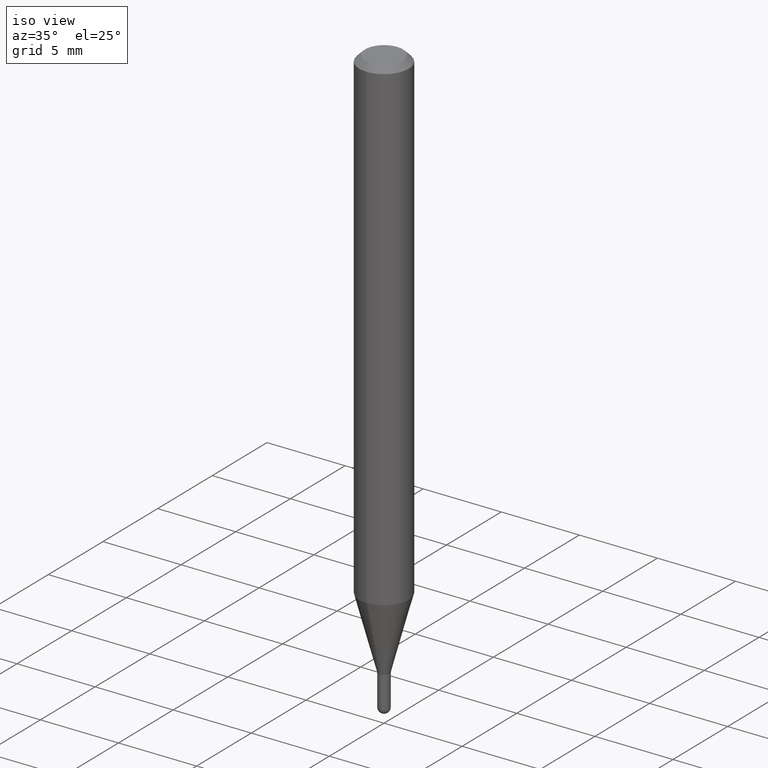
[diagram: clean part render]
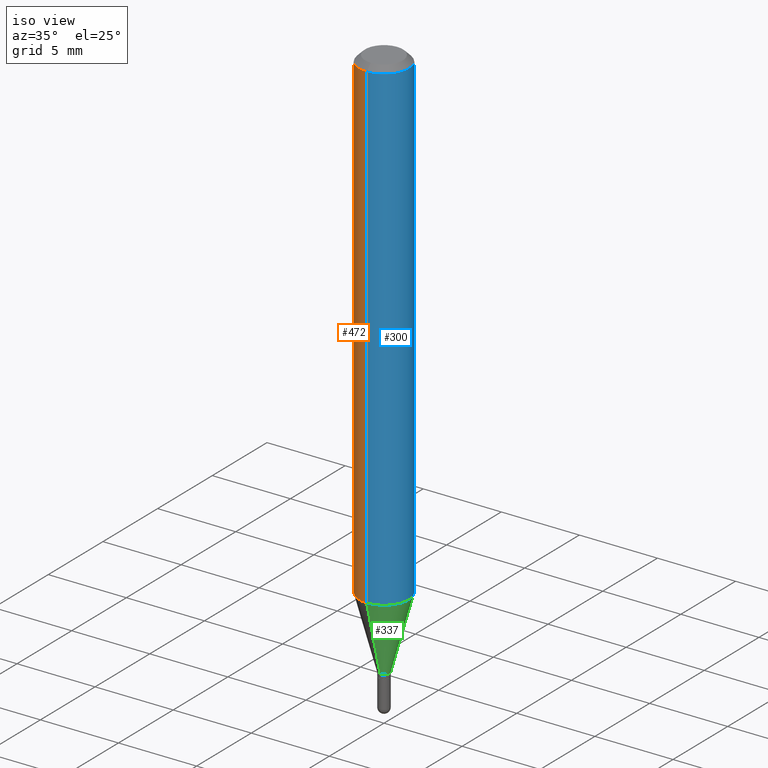
[diagram: same view with three faces highlighted in distinct colors, each labeled with its STEP entity id]
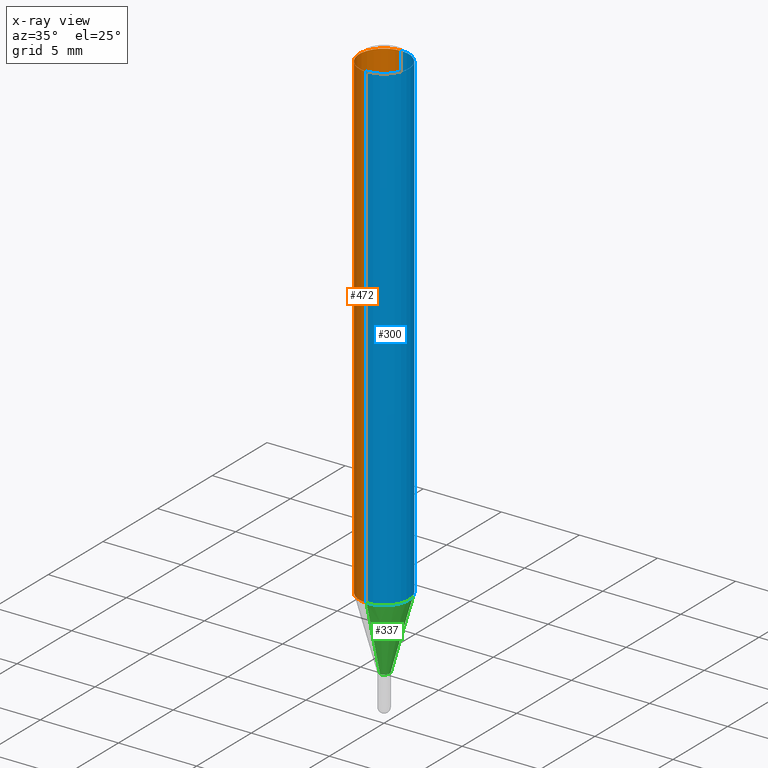
[diagram: x-ray of the same camera — body ghosted, the three highlighted faces saturated]
A machine part, iso view with three faces highlighted in distinct colors.
The next image is the same camera in x-ray (body ghosted, the three faces saturated) — at least one of them is partly hidden behind the body in this view.
Their STEP definitions:

[orange] entity #472 — the highlighted cylindrical surface (edge-blend (fillet) strip) has radius 1.5875 mm, axis along (-0, 0, 1).
#9 = CYLINDRICAL_SURFACE ( 'NONE', #173, 0.06250000000000000000 ) ;
#19 = CARTESIAN_POINT ( 'NONE',  ( 4.440892098500625669E-16, 0.06250000000000000000, -2.182188705240386283E-16 ) ) ;
#40 = EDGE_CURVE ( 'NONE', #512, #209, #125, .T. ) ;
#54 = DIRECTION ( 'NONE',  ( -2.445454428585171243E-29, 3.491501928384618052E-15, 1.000000000000000000 ) ) ;
#70 = DIRECTION ( 'NONE',  ( -6.982962677686265922E-15, -1.000000000000000000, 3.491501928384618052E-15 ) ) ;
#90 = VECTOR ( 'NONE', #339, 39.37007874015748143 ) ;
#103 = AXIS2_PLACEMENT_3D ( 'NONE', #338, #503, #297 ) ;
#107 = LINE ( 'NONE', #490, #322 ) ;
#125 = CIRCLE ( 'NONE', #103, 0.06250000000000000000 ) ;
#149 = VERTEX_POINT ( 'NONE', #370 ) ;
#155 = EDGE_CURVE ( 'NONE', #149, #335, #267, .T. ) ;
#156 = EDGE_LOOP ( 'NONE', ( #332, #284, #505, #311 ) ) ;
#173 = AXIS2_PLACEMENT_3D ( 'NONE', #502, #296, #70 ) ;
#177 = DIRECTION ( 'NONE',  ( -6.982962677686265922E-15, -1.000000000000000000, 4.370956789862821150E-15 ) ) ;
#184 = CARTESIAN_POINT ( 'NONE',  ( 2.995670758099655086E-29, -4.277074275623154281E-15, -1.224995535832910099 ) ) ;
#189 = CARTESIAN_POINT ( 'NONE',  ( 4.440892098500927901E-16, 0.06249999999999995837, -0.01499999999999997863 ) ) ;
#209 = VERTEX_POINT ( 'NONE', #290 ) ;
#222 = LINE ( 'NONE', #19, #90 ) ;
#267 = CIRCLE ( 'NONE', #437, 0.06250000000000000000 ) ;
#284 = ORIENTED_EDGE ( 'NONE', *, *, #155, .T. ) ;
#290 = CARTESIAN_POINT ( 'NONE',  ( -4.364351673553912750E-16, -0.06250000000000005551, -0.01499999999999954321 ) ) ;
#296 = DIRECTION ( 'NONE',  ( -2.445454428585171243E-29, 3.491501928384618052E-15, 1.000000000000000000 ) ) ;
#297 = DIRECTION ( 'NONE',  ( -6.982962677686265922E-15, -1.000000000000000000, 3.483106191921935554E-15 ) ) ;
#311 = ORIENTED_EDGE ( 'NONE', *, *, #40, .F. ) ;
#322 = VECTOR ( 'NONE', #452, 39.37007874015748143 ) ;
#332 = ORIENTED_EDGE ( 'NONE', *, *, #420, .F. ) ;
#335 = VERTEX_POINT ( 'NONE', #416 ) ;
#338 = CARTESIAN_POINT ( 'NONE',  ( 3.668181642877698501E-31, -5.237252892576844199E-17, -0.01499999999999976179 ) ) ;
#339 = DIRECTION ( 'NONE',  ( -2.445454428585170963E-29, 3.491501928384618052E-15, 1.000000000000000000 ) ) ;
#370 = CARTESIAN_POINT ( 'NONE',  ( 4.440892098500924943E-16, 0.06249999999999571176, -1.224995535832910321 ) ) ;
#371 = EDGE_CURVE ( 'NONE', #335, #209, #107, .T. ) ;
#406 = FACE_OUTER_BOUND ( 'NONE', #156, .T. ) ;
#416 = CARTESIAN_POINT ( 'NONE',  ( -4.364351673553617913E-16, -0.06250000000000428824, -1.224995535832910099 ) ) ;
#420 = EDGE_CURVE ( 'NONE', #149, #512, #222, .T. ) ;
#437 = AXIS2_PLACEMENT_3D ( 'NONE', #184, #54, #177 ) ;
#452 = DIRECTION ( 'NONE',  ( -2.445454428585170963E-29, 3.491501928384618052E-15, 1.000000000000000000 ) ) ;
#472 = ADVANCED_FACE ( 'NONE', ( #406 ), #9, .T. ) ;
#490 = CARTESIAN_POINT ( 'NONE',  ( -4.364351673553916201E-16, -0.06250000000000000000, 2.182188705240386283E-16 ) ) ;
#502 = CARTESIAN_POINT ( 'NONE',  ( 0.000000000000000000, 0.000000000000000000, 0.000000000000000000 ) ) ;
#503 = DIRECTION ( 'NONE',  ( -2.445454428585171243E-29, 3.491501928384618052E-15, 1.000000000000000000 ) ) ;
#505 = ORIENTED_EDGE ( 'NONE', *, *, #371, .T. ) ;
#512 = VERTEX_POINT ( 'NONE', #189 ) ;

[blue] entity #300 — the highlighted cylindrical surface (edge-blend (fillet) strip) has radius 1.5875 mm, axis along (-0, 0, 1).
#19 = CARTESIAN_POINT ( 'NONE',  ( 4.440892098500625669E-16, 0.06250000000000000000, -2.182188705240386283E-16 ) ) ;
#41 = ORIENTED_EDGE ( 'NONE', *, *, #420, .T. ) ;
#44 = ORIENTED_EDGE ( 'NONE', *, *, #371, .F. ) ;
#52 = AXIS2_PLACEMENT_3D ( 'NONE', #92, #147, #492 ) ;
#73 = DIRECTION ( 'NONE',  ( -2.445454428585171243E-29, 3.491501928384618052E-15, 1.000000000000000000 ) ) ;
#79 = FACE_OUTER_BOUND ( 'NONE', #159, .T. ) ;
#90 = VECTOR ( 'NONE', #339, 39.37007874015748143 ) ;
#92 = CARTESIAN_POINT ( 'NONE',  ( 3.668181642877698501E-31, -5.237252892576844199E-17, -0.01499999999999976179 ) ) ;
#107 = LINE ( 'NONE', #490, #322 ) ;
#131 = DIRECTION ( 'NONE',  ( -6.982962677686265922E-15, -1.000000000000000000, 4.370956789862821150E-15 ) ) ;
#134 = ORIENTED_EDGE ( 'NONE', *, *, #249, .T. ) ;
#147 = DIRECTION ( 'NONE',  ( -2.445454428585171243E-29, 3.491501928384618052E-15, 1.000000000000000000 ) ) ;
#149 = VERTEX_POINT ( 'NONE', #370 ) ;
#159 = EDGE_LOOP ( 'NONE', ( #134, #41, #183, #44 ) ) ;
#168 = AXIS2_PLACEMENT_3D ( 'NONE', #261, #73, #327 ) ;
#183 = ORIENTED_EDGE ( 'NONE', *, *, #271, .F. ) ;
#189 = CARTESIAN_POINT ( 'NONE',  ( 4.440892098500927901E-16, 0.06249999999999995837, -0.01499999999999997863 ) ) ;
#209 = VERTEX_POINT ( 'NONE', #290 ) ;
#219 = CIRCLE ( 'NONE', #255, 0.06250000000000000000 ) ;
#222 = LINE ( 'NONE', #19, #90 ) ;
#249 = EDGE_CURVE ( 'NONE', #335, #149, #219, .T. ) ;
#255 = AXIS2_PLACEMENT_3D ( 'NONE', #393, #435, #131 ) ;
#261 = CARTESIAN_POINT ( 'NONE',  ( 0.000000000000000000, 0.000000000000000000, 0.000000000000000000 ) ) ;
#271 = EDGE_CURVE ( 'NONE', #209, #512, #470, .T. ) ;
#290 = CARTESIAN_POINT ( 'NONE',  ( -4.364351673553912750E-16, -0.06250000000000005551, -0.01499999999999954321 ) ) ;
#300 = ADVANCED_FACE ( 'NONE', ( #79 ), #421, .T. ) ;
#322 = VECTOR ( 'NONE', #452, 39.37007874015748143 ) ;
#327 = DIRECTION ( 'NONE',  ( -6.982962677686265922E-15, -1.000000000000000000, 3.491501928384618052E-15 ) ) ;
#335 = VERTEX_POINT ( 'NONE', #416 ) ;
#339 = DIRECTION ( 'NONE',  ( -2.445454428585170963E-29, 3.491501928384618052E-15, 1.000000000000000000 ) ) ;
#370 = CARTESIAN_POINT ( 'NONE',  ( 4.440892098500924943E-16, 0.06249999999999571176, -1.224995535832910321 ) ) ;
#371 = EDGE_CURVE ( 'NONE', #335, #209, #107, .T. ) ;
#393 = CARTESIAN_POINT ( 'NONE',  ( 2.995670758099655086E-29, -4.277074275623154281E-15, -1.224995535832910099 ) ) ;
#416 = CARTESIAN_POINT ( 'NONE',  ( -4.364351673553617913E-16, -0.06250000000000428824, -1.224995535832910099 ) ) ;
#420 = EDGE_CURVE ( 'NONE', #149, #512, #222, .T. ) ;
#421 = CYLINDRICAL_SURFACE ( 'NONE', #168, 0.06250000000000000000 ) ;
#435 = DIRECTION ( 'NONE',  ( -2.445454428585171243E-29, 3.491501928384618052E-15, 1.000000000000000000 ) ) ;
#452 = DIRECTION ( 'NONE',  ( -2.445454428585170963E-29, 3.491501928384618052E-15, 1.000000000000000000 ) ) ;
#470 = CIRCLE ( 'NONE', #52, 0.06250000000000000000 ) ;
#490 = CARTESIAN_POINT ( 'NONE',  ( -4.364351673553916201E-16, -0.06250000000000000000, 2.182188705240386283E-16 ) ) ;
#492 = DIRECTION ( 'NONE',  ( -6.982962677686265922E-15, -1.000000000000000000, 3.483106191921935554E-15 ) ) ;
#512 = VERTEX_POINT ( 'NONE', #189 ) ;

[green] entity #337 — the highlighted conical surface has half-angle 15 deg.
#15 = DIRECTION ( 'NONE',  ( -6.982962677686265133E-15, -1.000000000000000000, 0.000000000000000000 ) ) ;
#29 = FACE_OUTER_BOUND ( 'NONE', #188, .T. ) ;
#37 = VECTOR ( 'NONE', #507, 39.37007874015748854 ) ;
#57 = EDGE_CURVE ( 'NONE', #195, #335, #233, .T. ) ;
#93 = CARTESIAN_POINT ( 'NONE',  ( 2.717825964282703634E-16, 0.01399999999999501643, -1.406000000000000139 ) ) ;
#118 = DIRECTION ( 'NONE',  ( -6.982962677686265133E-15, -1.000000000000000000, 0.000000000000000000 ) ) ;
#129 = CARTESIAN_POINT ( 'NONE',  ( 9.947598300644785050E-17, 0.01399999999999501643, -1.406000000000000139 ) ) ;
#131 = DIRECTION ( 'NONE',  ( -6.982962677686265922E-15, -1.000000000000000000, 4.370956789862821150E-15 ) ) ;
#149 = VERTEX_POINT ( 'NONE', #370 ) ;
#162 = VERTEX_POINT ( 'NONE', #93 ) ;
#188 = EDGE_LOOP ( 'NONE', ( #329, #430, #372, #254 ) ) ;
#194 = DIRECTION ( 'NONE',  ( -2.445454428585171243E-29, 3.491501928384618052E-15, 1.000000000000000000 ) ) ;
#195 = VERTEX_POINT ( 'NONE', #374 ) ;
#203 = AXIS2_PLACEMENT_3D ( 'NONE', #298, #194, #118 ) ;
#219 = CIRCLE ( 'NONE', #255, 0.06250000000000000000 ) ;
#233 = LINE ( 'NONE', #385, #37 ) ;
#239 = VECTOR ( 'NONE', #349, 39.37007874015748854 ) ;
#249 = EDGE_CURVE ( 'NONE', #335, #149, #219, .T. ) ;
#254 = ORIENTED_EDGE ( 'NONE', *, *, #57, .F. ) ;
#255 = AXIS2_PLACEMENT_3D ( 'NONE', #393, #435, #131 ) ;
#298 = CARTESIAN_POINT ( 'NONE',  ( 3.438308926590751733E-29, -4.909051711308774725E-15, -1.406000000000000139 ) ) ;
#329 = ORIENTED_EDGE ( 'NONE', *, *, #434, .T. ) ;
#334 = LINE ( 'NONE', #129, #239 ) ;
#335 = VERTEX_POINT ( 'NONE', #416 ) ;
#337 = ADVANCED_FACE ( 'NONE', ( #29 ), #352, .T. ) ;
#349 = DIRECTION ( 'NONE',  ( 1.839019923739601499E-15, 0.2588190451025251249, 0.9659258262890670910 ) ) ;
#352 = CONICAL_SURFACE ( 'NONE', #454, 0.01399999999999992396, 0.2617993877991504625 ) ;
#370 = CARTESIAN_POINT ( 'NONE',  ( 4.440892098500924943E-16, 0.06249999999999571176, -1.224995535832910321 ) ) ;
#372 = ORIENTED_EDGE ( 'NONE', *, *, #249, .F. ) ;
#374 = CARTESIAN_POINT ( 'NONE',  ( -9.776147748757280565E-17, -0.01400000000000483323, -1.406000000000000139 ) ) ;
#375 = CARTESIAN_POINT ( 'NONE',  ( 3.438308926590751733E-29, -4.909051711308774725E-15, -1.406000000000000139 ) ) ;
#385 = CARTESIAN_POINT ( 'NONE',  ( -9.776147748757280565E-17, -0.01400000000000483323, -1.406000000000000139 ) ) ;
#393 = CARTESIAN_POINT ( 'NONE',  ( 2.995670758099655086E-29, -4.277074275623154281E-15, -1.224995535832910099 ) ) ;
#416 = CARTESIAN_POINT ( 'NONE',  ( -4.364351673553617913E-16, -0.06250000000000428824, -1.224995535832910099 ) ) ;
#430 = ORIENTED_EDGE ( 'NONE', *, *, #436, .T. ) ;
#434 = EDGE_CURVE ( 'NONE', #195, #162, #485, .T. ) ;
#435 = DIRECTION ( 'NONE',  ( -2.445454428585171243E-29, 3.491501928384618052E-15, 1.000000000000000000 ) ) ;
#436 = EDGE_CURVE ( 'NONE', #162, #149, #334, .T. ) ;
#454 = AXIS2_PLACEMENT_3D ( 'NONE', #375, #464, #15 ) ;
#464 = DIRECTION ( 'NONE',  ( -2.445454428585171243E-29, 3.491501928384618052E-15, 1.000000000000000000 ) ) ;
#485 = CIRCLE ( 'NONE', #203, 0.01399999999999992396 ) ;
#507 = DIRECTION ( 'NONE',  ( -1.807323732225331323E-15, -0.2588190451025183525, 0.9659258262890689783 ) ) ;